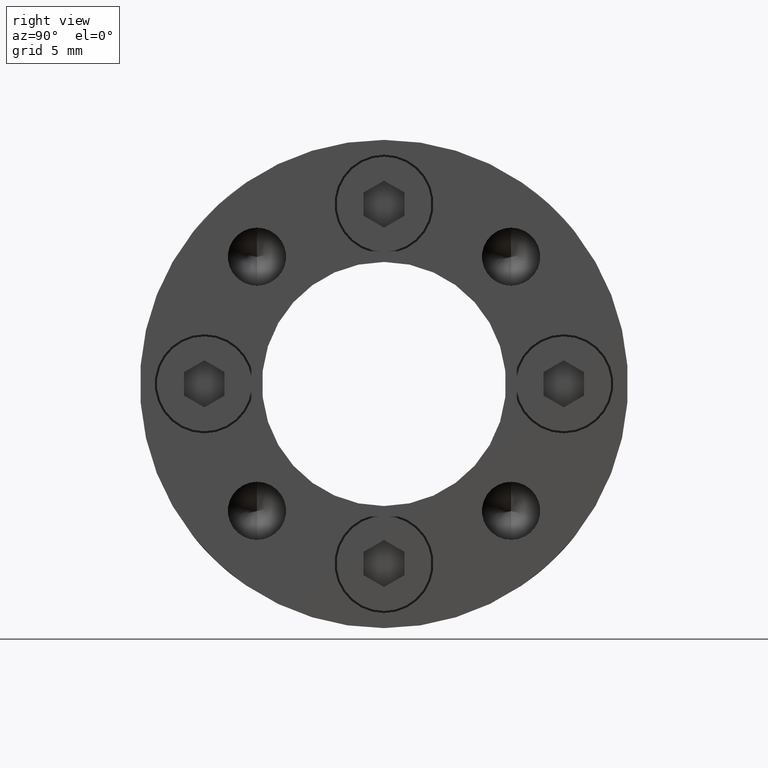
[diagram: clean part render]
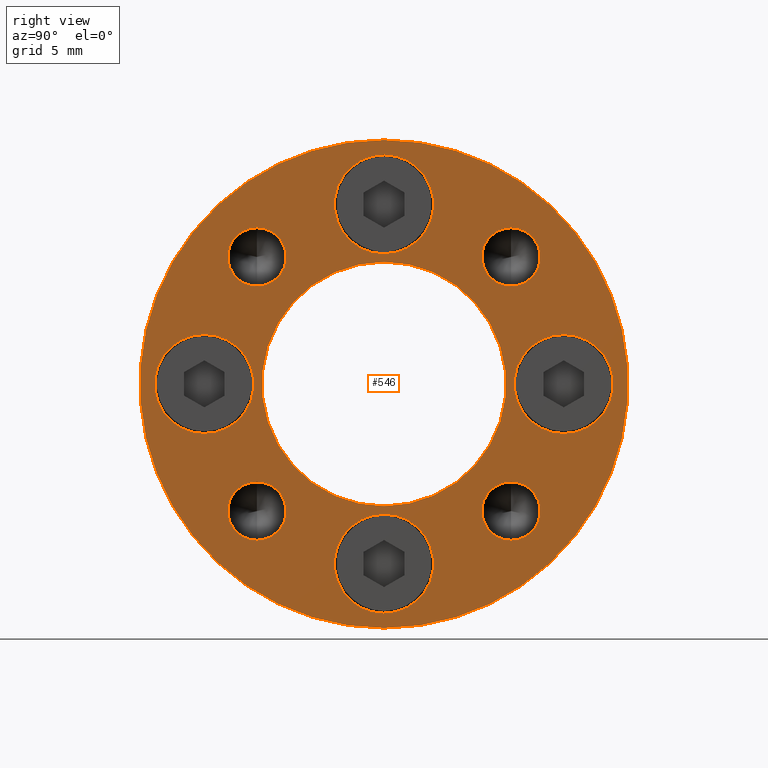
[diagram: same view with one face highlighted and labeled with its STEP entity id]
A machine part, right view. The second image highlights one B-rep face of the part: STEP entity #546.
In plain terms, the highlighted planar face has unit normal (1, 0, 0).
Its self-contained STEP definition (entity closure, byte-faithful):
#312 = DIRECTION ( 'NONE',  ( 1.000000000000000000, -0.0000000000000000000, 0.0000000000000000000 ) ) ;
#314 = PLANE ( 'NONE',  #1750 ) ;
#316 = CARTESIAN_POINT ( 'NONE',  ( 17.99999999999999600, 13.49999999999999800, 0.0000000000000000000 ) ) ;
#318 = DIRECTION ( 'NONE',  ( 0.0000000000000000000, 0.0000000000000000000, -1.000000000000000000 ) ) ;
#546 = ADVANCED_FACE ( 'NONE', ( #1478, #1486, #1482, #1480, #1484, #1487, #1488, #1489, #1490, #1491 ), #314, .T. ) ;
#617 = EDGE_CURVE ( 'NONE', #1235, #1251, #1630, .T. ) ;
#621 = EDGE_CURVE ( 'NONE', #1223, #1234, #1636, .T. ) ;
#625 = EDGE_CURVE ( 'NONE', #1254, #1253, #1641, .T. ) ;
#629 = EDGE_CURVE ( 'NONE', #1214, #1215, #1647, .T. ) ;
#633 = EDGE_CURVE ( 'NONE', #1247, #1249, #1653, .T. ) ;
#637 = EDGE_CURVE ( 'NONE', #1245, #1244, #1659, .T. ) ;
#641 = EDGE_CURVE ( 'NONE', #1241, #1250, #1665, .T. ) ;
#645 = EDGE_CURVE ( 'NONE', #1224, #1225, #1671, .T. ) ;
#649 = EDGE_CURVE ( 'NONE', #1228, #1233, #1677, .T. ) ;
#653 = EDGE_CURVE ( 'NONE', #1230, #1238, #2426, .T. ) ;
#667 = EDGE_CURVE ( 'NONE', #1238, #1230, #2449, .T. ) ;
#668 = EDGE_CURVE ( 'NONE', #1233, #1228, #2450, .T. ) ;
#669 = EDGE_CURVE ( 'NONE', #1225, #1224, #2451, .T. ) ;
#670 = EDGE_CURVE ( 'NONE', #1250, #1241, #2452, .T. ) ;
#672 = EDGE_CURVE ( 'NONE', #1244, #1245, #2454, .T. ) ;
#674 = EDGE_CURVE ( 'NONE', #1249, #1247, #2456, .T. ) ;
#678 = EDGE_LOOP ( 'NONE', ( #888, #889 ) ) ;
#683 = EDGE_LOOP ( 'NONE', ( #878, #879 ) ) ;
#724 = EDGE_LOOP ( 'NONE', ( #880, #881 ) ) ;
#725 = EDGE_LOOP ( 'NONE', ( #886, #887 ) ) ;
#727 = EDGE_LOOP ( 'NONE', ( #882, #883 ) ) ;
#729 = EDGE_LOOP ( 'NONE', ( #892, #893 ) ) ;
#730 = EDGE_LOOP ( 'NONE', ( #884, #885 ) ) ;
#731 = EDGE_LOOP ( 'NONE', ( #896, #897 ) ) ;
#732 = EDGE_LOOP ( 'NONE', ( #890, #891 ) ) ;
#734 = EDGE_LOOP ( 'NONE', ( #894, #895 ) ) ;
#878 = ORIENTED_EDGE ( 'NONE', *, *, #621, .T. ) ;
#879 = ORIENTED_EDGE ( 'NONE', *, *, #1038, .T. ) ;
#880 = ORIENTED_EDGE ( 'NONE', *, *, #625, .T. ) ;
#881 = ORIENTED_EDGE ( 'NONE', *, *, #1037, .T. ) ;
#882 = ORIENTED_EDGE ( 'NONE', *, *, #629, .T. ) ;
#883 = ORIENTED_EDGE ( 'NONE', *, *, #1035, .T. ) ;
#884 = ORIENTED_EDGE ( 'NONE', *, *, #633, .T. ) ;
#885 = ORIENTED_EDGE ( 'NONE', *, *, #674, .T. ) ;
#886 = ORIENTED_EDGE ( 'NONE', *, *, #637, .T. ) ;
#887 = ORIENTED_EDGE ( 'NONE', *, *, #672, .T. ) ;
#888 = ORIENTED_EDGE ( 'NONE', *, *, #641, .T. ) ;
#889 = ORIENTED_EDGE ( 'NONE', *, *, #670, .T. ) ;
#890 = ORIENTED_EDGE ( 'NONE', *, *, #645, .T. ) ;
#891 = ORIENTED_EDGE ( 'NONE', *, *, #669, .T. ) ;
#892 = ORIENTED_EDGE ( 'NONE', *, *, #649, .T. ) ;
#893 = ORIENTED_EDGE ( 'NONE', *, *, #668, .T. ) ;
#894 = ORIENTED_EDGE ( 'NONE', *, *, #653, .T. ) ;
#895 = ORIENTED_EDGE ( 'NONE', *, *, #667, .T. ) ;
#896 = ORIENTED_EDGE ( 'NONE', *, *, #1039, .F. ) ;
#897 = ORIENTED_EDGE ( 'NONE', *, *, #617, .F. ) ;
#1035 = EDGE_CURVE ( 'NONE', #1215, #1214, #2561, .T. ) ;
#1037 = EDGE_CURVE ( 'NONE', #1253, #1254, #2563, .T. ) ;
#1038 = EDGE_CURVE ( 'NONE', #1234, #1223, #2564, .T. ) ;
#1039 = EDGE_CURVE ( 'NONE', #1251, #1235, #2565, .T. ) ;
#1214 = VERTEX_POINT ( 'NONE', #3087 ) ;
#1215 = VERTEX_POINT ( 'NONE', #3092 ) ;
#1223 = VERTEX_POINT ( 'NONE', #3099 ) ;
#1224 = VERTEX_POINT ( 'NONE', #3100 ) ;
#1225 = VERTEX_POINT ( 'NONE', #3101 ) ;
#1228 = VERTEX_POINT ( 'NONE', #3104 ) ;
#1230 = VERTEX_POINT ( 'NONE', #3106 ) ;
#1233 = VERTEX_POINT ( 'NONE', #3109 ) ;
#1234 = VERTEX_POINT ( 'NONE', #3110 ) ;
#1235 = VERTEX_POINT ( 'NONE', #3111 ) ;
#1238 = VERTEX_POINT ( 'NONE', #3114 ) ;
#1241 = VERTEX_POINT ( 'NONE', #3117 ) ;
#1244 = VERTEX_POINT ( 'NONE', #3120 ) ;
#1245 = VERTEX_POINT ( 'NONE', #3121 ) ;
#1247 = VERTEX_POINT ( 'NONE', #3123 ) ;
#1249 = VERTEX_POINT ( 'NONE', #3125 ) ;
#1250 = VERTEX_POINT ( 'NONE', #3126 ) ;
#1251 = VERTEX_POINT ( 'NONE', #3127 ) ;
#1253 = VERTEX_POINT ( 'NONE', #3129 ) ;
#1254 = VERTEX_POINT ( 'NONE', #3130 ) ;
#1478 = FACE_BOUND ( 'NONE', #683, .T. ) ;
#1480 = FACE_BOUND ( 'NONE', #730, .T. ) ;
#1482 = FACE_BOUND ( 'NONE', #727, .T. ) ;
#1484 = FACE_BOUND ( 'NONE', #725, .T. ) ;
#1486 = FACE_BOUND ( 'NONE', #724, .T. ) ;
#1487 = FACE_BOUND ( 'NONE', #678, .T. ) ;
#1488 = FACE_BOUND ( 'NONE', #732, .T. ) ;
#1489 = FACE_BOUND ( 'NONE', #729, .T. ) ;
#1490 = FACE_BOUND ( 'NONE', #734, .T. ) ;
#1491 = FACE_OUTER_BOUND ( 'NONE', #731, .T. ) ;
#1630 = CIRCLE ( 'NONE', #1818, 18.00000000000000400 ) ;
#1636 = CIRCLE ( 'NONE', #1820, 9.000000000000001800 ) ;
#1641 = CIRCLE ( 'NONE', #1822, 3.650000000000000400 ) ;
#1647 = CIRCLE ( 'NONE', #1824, 3.649999999999999900 ) ;
#1653 = CIRCLE ( 'NONE', #1826, 3.650000000000000400 ) ;
#1659 = CIRCLE ( 'NONE', #1828, 3.649999999999999900 ) ;
#1665 = CIRCLE ( 'NONE', #1830, 2.149999999999999900 ) ;
#1671 = CIRCLE ( 'NONE', #1832, 2.149999999999999000 ) ;
#1677 = CIRCLE ( 'NONE', #1834, 2.149999999999999000 ) ;
#1750 = AXIS2_PLACEMENT_3D ( 'NONE', #316, #312, #318 ) ;
#1818 = AXIS2_PLACEMENT_3D ( 'NONE', #2116, #2117, #2118 ) ;
#1820 = AXIS2_PLACEMENT_3D ( 'NONE', #2126, #2127, #2128 ) ;
#1822 = AXIS2_PLACEMENT_3D ( 'NONE', #2136, #2137, #2138 ) ;
#1824 = AXIS2_PLACEMENT_3D ( 'NONE', #2146, #2147, #2148 ) ;
#1826 = AXIS2_PLACEMENT_3D ( 'NONE', #2156, #2157, #2158 ) ;
#1828 = AXIS2_PLACEMENT_3D ( 'NONE', #2166, #2167, #2168 ) ;
#1830 = AXIS2_PLACEMENT_3D ( 'NONE', #2176, #2177, #2178 ) ;
#1832 = AXIS2_PLACEMENT_3D ( 'NONE', #2186, #2187, #2188 ) ;
#1834 = AXIS2_PLACEMENT_3D ( 'NONE', #2196, #2197, #2198 ) ;
#1836 = AXIS2_PLACEMENT_3D ( 'NONE', #2208, #2209, #2210 ) ;
#1841 = AXIS2_PLACEMENT_3D ( 'NONE', #2237, #2238, #2239 ) ;
#1842 = AXIS2_PLACEMENT_3D ( 'NONE', #2240, #2241, #2242 ) ;
#1843 = AXIS2_PLACEMENT_3D ( 'NONE', #2243, #2244, #2245 ) ;
#1844 = AXIS2_PLACEMENT_3D ( 'NONE', #2246, #2247, #2248 ) ;
#1846 = AXIS2_PLACEMENT_3D ( 'NONE', #2252, #2253, #2254 ) ;
#1848 = AXIS2_PLACEMENT_3D ( 'NONE', #2259, #2260, #2261 ) ;
#1879 = AXIS2_PLACEMENT_3D ( 'NONE', #2856, #2857, #2858 ) ;
#1881 = AXIS2_PLACEMENT_3D ( 'NONE', #2862, #2863, #2864 ) ;
#1882 = AXIS2_PLACEMENT_3D ( 'NONE', #2865, #2866, #2867 ) ;
#1883 = AXIS2_PLACEMENT_3D ( 'NONE', #2868, #2869, #2870 ) ;
#2116 = CARTESIAN_POINT ( 'NONE',  ( 17.99999999999999600, 0.0000000000000000000, 0.0000000000000000000 ) ) ;
#2117 = DIRECTION ( 'NONE',  ( -1.000000000000000000, -0.0000000000000000000, -0.0000000000000000000 ) ) ;
#2118 = DIRECTION ( 'NONE',  ( 0.0000000000000000000, 0.0000000000000000000, -1.000000000000000000 ) ) ;
#2126 = CARTESIAN_POINT ( 'NONE',  ( 17.99999999999999600, 0.0000000000000000000, 0.0000000000000000000 ) ) ;
#2127 = DIRECTION ( 'NONE',  ( -1.000000000000000000, -0.0000000000000000000, -0.0000000000000000000 ) ) ;
#2128 = DIRECTION ( 'NONE',  ( 0.0000000000000000000, 0.0000000000000000000, -1.000000000000000000 ) ) ;
#2136 = CARTESIAN_POINT ( 'NONE',  ( 17.99999999999999600, 0.0000000000000000000, 13.25000000000000900 ) ) ;
#2137 = DIRECTION ( 'NONE',  ( -1.000000000000000000, -0.0000000000000000000, -0.0000000000000000000 ) ) ;
#2138 = DIRECTION ( 'NONE',  ( 0.0000000000000000000, 0.0000000000000000000, -1.000000000000000000 ) ) ;
#2146 = CARTESIAN_POINT ( 'NONE',  ( 17.99999999999999600, -13.25000000000000900, 8.113284999999999900E-016 ) ) ;
#2147 = DIRECTION ( 'NONE',  ( -1.000000000000000000, -0.0000000000000000000, -0.0000000000000000000 ) ) ;
#2148 = DIRECTION ( 'NONE',  ( 0.0000000000000000000, 0.0000000000000000000, -1.000000000000000000 ) ) ;
#2156 = CARTESIAN_POINT ( 'NONE',  ( 17.99999999999999600, -1.622657000000000000E-015, -13.25000000000000900 ) ) ;
#2157 = DIRECTION ( 'NONE',  ( -1.000000000000000000, -0.0000000000000000000, -0.0000000000000000000 ) ) ;
#2158 = DIRECTION ( 'NONE',  ( 0.0000000000000000000, 0.0000000000000000000, -1.000000000000000000 ) ) ;
#2166 = CARTESIAN_POINT ( 'NONE',  ( 17.99999999999999600, 13.25000000000000900, -2.433985999999999900E-015 ) ) ;
#2167 = DIRECTION ( 'NONE',  ( -1.000000000000000000, -0.0000000000000000000, -0.0000000000000000000 ) ) ;
#2168 = DIRECTION ( 'NONE',  ( 0.0000000000000000000, 0.0000000000000000000, -1.000000000000000000 ) ) ;
#2176 = CARTESIAN_POINT ( 'NONE',  ( 17.99999999999999600, -9.369164850721755800, 9.369164850721755800 ) ) ;
#2177 = DIRECTION ( 'NONE',  ( -1.000000000000000000, -0.0000000000000000000, -0.0000000000000000000 ) ) ;
#2178 = DIRECTION ( 'NONE',  ( 0.0000000000000000000, 0.0000000000000000000, -1.000000000000000000 ) ) ;
#2186 = CARTESIAN_POINT ( 'NONE',  ( 17.99999999999999600, -9.369164850721757500, -9.369164850721755800 ) ) ;
#2187 = DIRECTION ( 'NONE',  ( -1.000000000000000000, -0.0000000000000000000, -0.0000000000000000000 ) ) ;
#2188 = DIRECTION ( 'NONE',  ( 0.0000000000000000000, 0.0000000000000000000, -1.000000000000000000 ) ) ;
#2196 = CARTESIAN_POINT ( 'NONE',  ( 17.99999999999999600, 9.369164850721754000, -9.369164850721759300 ) ) ;
#2197 = DIRECTION ( 'NONE',  ( -1.000000000000000000, -0.0000000000000000000, -0.0000000000000000000 ) ) ;
#2198 = DIRECTION ( 'NONE',  ( 0.0000000000000000000, 0.0000000000000000000, -1.000000000000000000 ) ) ;
#2208 = CARTESIAN_POINT ( 'NONE',  ( 17.99999999999999600, 9.369164850721759300, 9.369164850721754000 ) ) ;
#2209 = DIRECTION ( 'NONE',  ( -1.000000000000000000, -0.0000000000000000000, -0.0000000000000000000 ) ) ;
#2210 = DIRECTION ( 'NONE',  ( 0.0000000000000000000, 0.0000000000000000000, -1.000000000000000000 ) ) ;
#2237 = CARTESIAN_POINT ( 'NONE',  ( 17.99999999999999600, 9.369164850721759300, 9.369164850721754000 ) ) ;
#2238 = DIRECTION ( 'NONE',  ( -1.000000000000000000, -0.0000000000000000000, -0.0000000000000000000 ) ) ;
#2239 = DIRECTION ( 'NONE',  ( 0.0000000000000000000, 0.0000000000000000000, -1.000000000000000000 ) ) ;
#2240 = CARTESIAN_POINT ( 'NONE',  ( 17.99999999999999600, 9.369164850721754000, -9.369164850721759300 ) ) ;
#2241 = DIRECTION ( 'NONE',  ( -1.000000000000000000, -0.0000000000000000000, -0.0000000000000000000 ) ) ;
#2242 = DIRECTION ( 'NONE',  ( 0.0000000000000000000, 0.0000000000000000000, -1.000000000000000000 ) ) ;
#2243 = CARTESIAN_POINT ( 'NONE',  ( 17.99999999999999600, -9.369164850721757500, -9.369164850721755800 ) ) ;
#2244 = DIRECTION ( 'NONE',  ( -1.000000000000000000, -0.0000000000000000000, -0.0000000000000000000 ) ) ;
#2245 = DIRECTION ( 'NONE',  ( 0.0000000000000000000, 0.0000000000000000000, -1.000000000000000000 ) ) ;
#2246 = CARTESIAN_POINT ( 'NONE',  ( 17.99999999999999600, -9.369164850721755800, 9.369164850721755800 ) ) ;
#2247 = DIRECTION ( 'NONE',  ( -1.000000000000000000, -0.0000000000000000000, -0.0000000000000000000 ) ) ;
#2248 = DIRECTION ( 'NONE',  ( 0.0000000000000000000, 0.0000000000000000000, -1.000000000000000000 ) ) ;
#2252 = CARTESIAN_POINT ( 'NONE',  ( 17.99999999999999600, 13.25000000000000900, -2.433985999999999900E-015 ) ) ;
#2253 = DIRECTION ( 'NONE',  ( -1.000000000000000000, -0.0000000000000000000, -0.0000000000000000000 ) ) ;
#2254 = DIRECTION ( 'NONE',  ( 0.0000000000000000000, 0.0000000000000000000, -1.000000000000000000 ) ) ;
#2259 = CARTESIAN_POINT ( 'NONE',  ( 17.99999999999999600, -1.622657000000000000E-015, -13.25000000000000900 ) ) ;
#2260 = DIRECTION ( 'NONE',  ( -1.000000000000000000, -0.0000000000000000000, -0.0000000000000000000 ) ) ;
#2261 = DIRECTION ( 'NONE',  ( 0.0000000000000000000, 0.0000000000000000000, -1.000000000000000000 ) ) ;
#2426 = CIRCLE ( 'NONE', #1836, 2.149999999999999900 ) ;
#2449 = CIRCLE ( 'NONE', #1841, 2.149999999999999900 ) ;
#2450 = CIRCLE ( 'NONE', #1842, 2.149999999999999000 ) ;
#2451 = CIRCLE ( 'NONE', #1843, 2.149999999999999000 ) ;
#2452 = CIRCLE ( 'NONE', #1844, 2.149999999999999900 ) ;
#2454 = CIRCLE ( 'NONE', #1846, 3.649999999999999900 ) ;
#2456 = CIRCLE ( 'NONE', #1848, 3.650000000000000400 ) ;
#2561 = CIRCLE ( 'NONE', #1879, 3.649999999999999900 ) ;
#2563 = CIRCLE ( 'NONE', #1881, 3.650000000000000400 ) ;
#2564 = CIRCLE ( 'NONE', #1882, 9.000000000000001800 ) ;
#2565 = CIRCLE ( 'NONE', #1883, 18.00000000000000400 ) ;
#2856 = CARTESIAN_POINT ( 'NONE',  ( 17.99999999999999600, -13.25000000000000900, 8.113284999999999900E-016 ) ) ;
#2857 = DIRECTION ( 'NONE',  ( -1.000000000000000000, -0.0000000000000000000, -0.0000000000000000000 ) ) ;
#2858 = DIRECTION ( 'NONE',  ( 0.0000000000000000000, 0.0000000000000000000, -1.000000000000000000 ) ) ;
#2862 = CARTESIAN_POINT ( 'NONE',  ( 17.99999999999999600, 0.0000000000000000000, 13.25000000000000900 ) ) ;
#2863 = DIRECTION ( 'NONE',  ( -1.000000000000000000, -0.0000000000000000000, -0.0000000000000000000 ) ) ;
#2864 = DIRECTION ( 'NONE',  ( 0.0000000000000000000, 0.0000000000000000000, -1.000000000000000000 ) ) ;
#2865 = CARTESIAN_POINT ( 'NONE',  ( 17.99999999999999600, 0.0000000000000000000, 0.0000000000000000000 ) ) ;
#2866 = DIRECTION ( 'NONE',  ( -1.000000000000000000, -0.0000000000000000000, -0.0000000000000000000 ) ) ;
#2867 = DIRECTION ( 'NONE',  ( 0.0000000000000000000, 0.0000000000000000000, -1.000000000000000000 ) ) ;
#2868 = CARTESIAN_POINT ( 'NONE',  ( 17.99999999999999600, 0.0000000000000000000, 0.0000000000000000000 ) ) ;
#2869 = DIRECTION ( 'NONE',  ( -1.000000000000000000, -0.0000000000000000000, -0.0000000000000000000 ) ) ;
#2870 = DIRECTION ( 'NONE',  ( 0.0000000000000000000, 0.0000000000000000000, -1.000000000000000000 ) ) ;
#3087 = CARTESIAN_POINT ( 'NONE',  ( 17.99999999999999600, -13.25000000000000900, -3.649999999999999000 ) ) ;
#3092 = CARTESIAN_POINT ( 'NONE',  ( 17.99999999999999600, -13.25000000000000900, 3.650000000000000800 ) ) ;
#3099 = CARTESIAN_POINT ( 'NONE',  ( 17.99999999999999600, 0.0000000000000000000, -9.000000000000001800 ) ) ;
#3100 = CARTESIAN_POINT ( 'NONE',  ( 17.99999999999999600, -9.369164850721757500, -11.51916485072175600 ) ) ;
#3101 = CARTESIAN_POINT ( 'NONE',  ( 17.99999999999999600, -9.369164850721757500, -7.219164850721756300 ) ) ;
#3104 = CARTESIAN_POINT ( 'NONE',  ( 17.99999999999999600, 9.369164850721754000, -11.51916485072176000 ) ) ;
#3106 = CARTESIAN_POINT ( 'NONE',  ( 17.99999999999999600, 9.369164850721759300, 7.219164850721754500 ) ) ;
#3109 = CARTESIAN_POINT ( 'NONE',  ( 17.99999999999999600, 9.369164850721754000, -7.219164850721759800 ) ) ;
#3110 = CARTESIAN_POINT ( 'NONE',  ( 17.99999999999999600, 1.102182119232617900E-015, 9.000000000000001800 ) ) ;
#3111 = CARTESIAN_POINT ( 'NONE',  ( 17.99999999999999600, 2.204364238465235800E-015, 18.00000000000000400 ) ) ;
#3114 = CARTESIAN_POINT ( 'NONE',  ( 17.99999999999999600, 9.369164850721759300, 11.51916485072175600 ) ) ;
#3117 = CARTESIAN_POINT ( 'NONE',  ( 17.99999999999999600, -9.369164850721755800, 7.219164850721756300 ) ) ;
#3120 = CARTESIAN_POINT ( 'NONE',  ( 17.99999999999999600, 13.25000000000000900, 3.649999999999997200 ) ) ;
#3121 = CARTESIAN_POINT ( 'NONE',  ( 17.99999999999999600, 13.25000000000000900, -3.650000000000002600 ) ) ;
#3123 = CARTESIAN_POINT ( 'NONE',  ( 17.99999999999999600, -1.622657000000000000E-015, -16.90000000000000900 ) ) ;
#3125 = CARTESIAN_POINT ( 'NONE',  ( 17.99999999999999600, -1.175660918311216100E-015, -9.600000000000008500 ) ) ;
#3126 = CARTESIAN_POINT ( 'NONE',  ( 17.99999999999999600, -9.369164850721755800, 11.51916485072175600 ) ) ;
#3127 = CARTESIAN_POINT ( 'NONE',  ( 17.99999999999999600, 0.0000000000000000000, -18.00000000000000400 ) ) ;
#3129 = CARTESIAN_POINT ( 'NONE',  ( 17.99999999999999600, 4.469960816887838400E-016, 16.90000000000000900 ) ) ;
#3130 = CARTESIAN_POINT ( 'NONE',  ( 17.99999999999999600, 0.0000000000000000000, 9.600000000000008500 ) ) ;